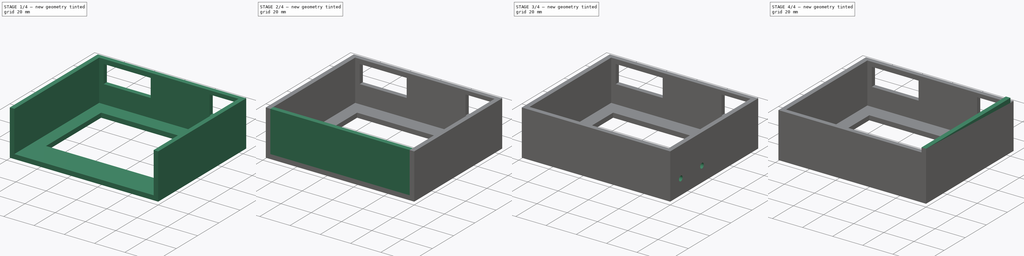
[diagram: build sequence overview — one tinted view per stage of 4, left to right]
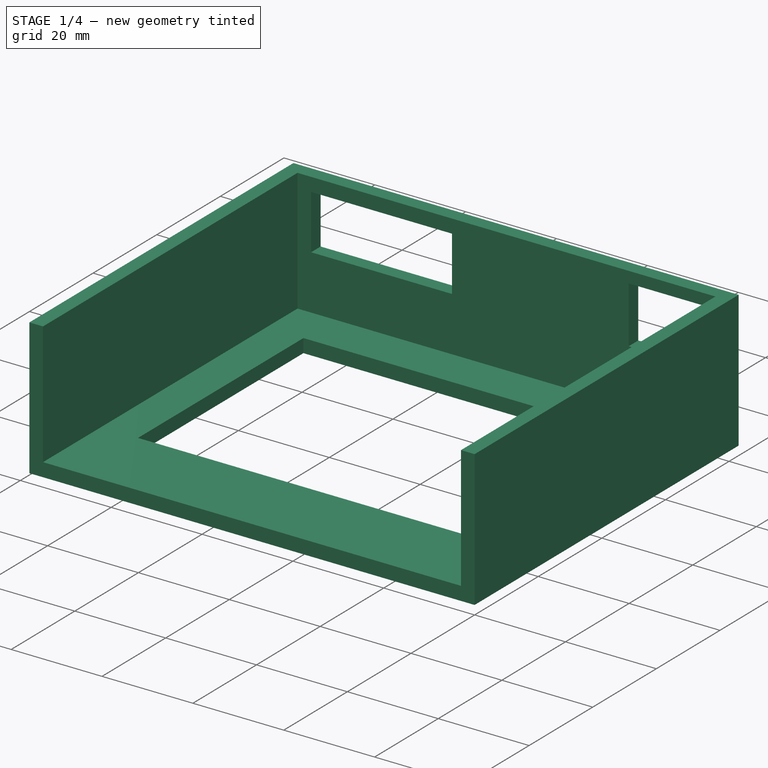
[diagram: stage 1 of 4 — iso view after this stage's code; geometry added in this stage tinted green]
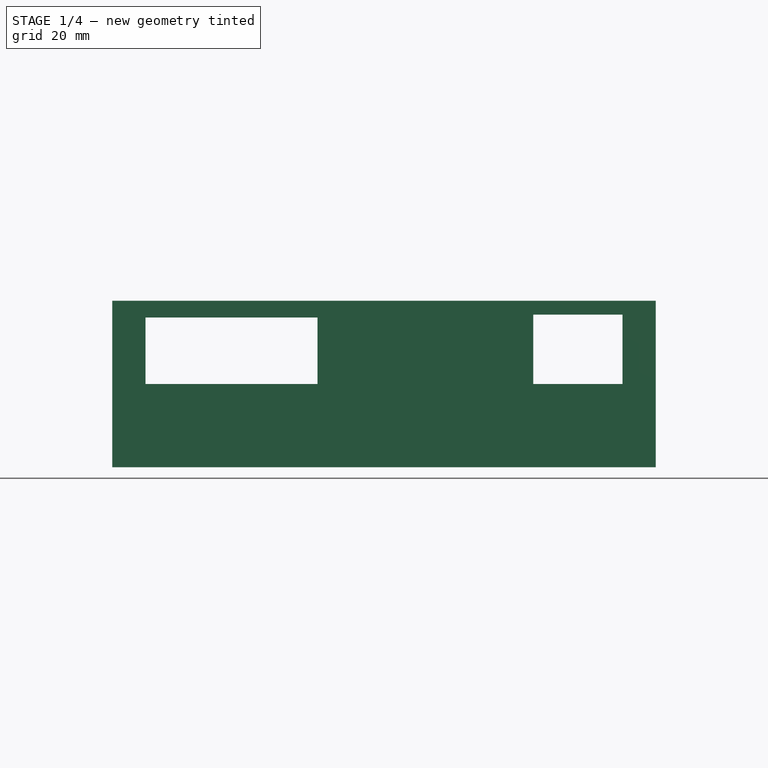
[diagram: stage 1 of 4 — front view after this stage's code; geometry added in this stage tinted green]
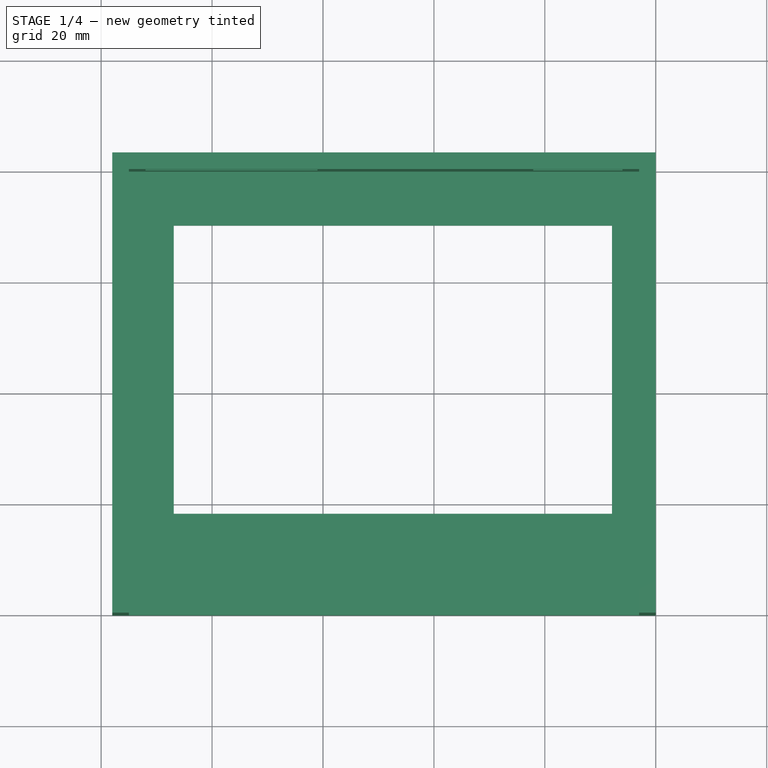
[diagram: stage 1 of 4 — top view after this stage's code; geometry added in this stage tinted green]
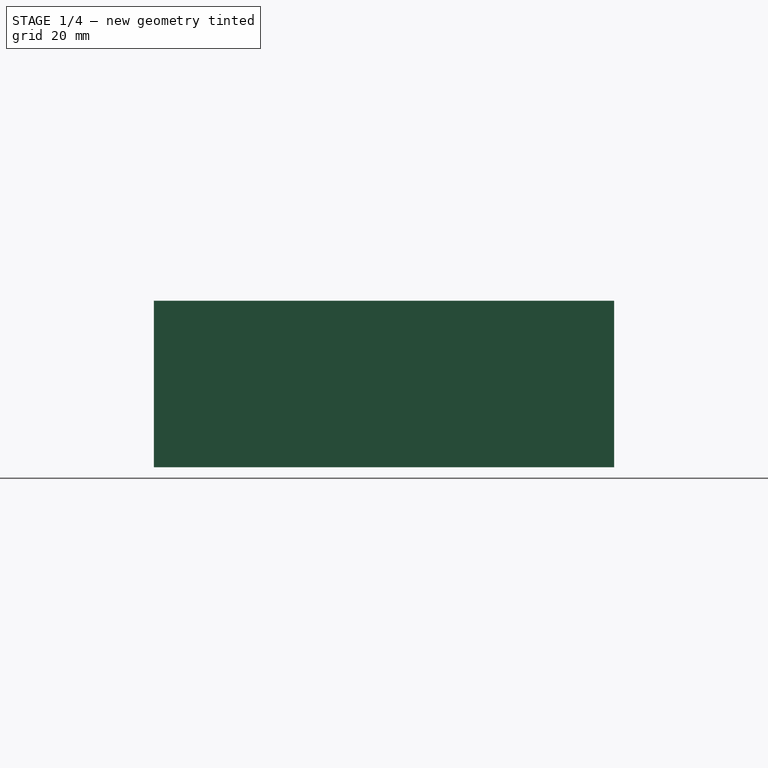
[diagram: stage 1 of 4 — right view after this stage's code; geometry added in this stage tinted green]
FCSTD DOCUMENT  (FreeCAD 0.14R2935 (Git))
Label: carcas_2
License: CC-BY 3.0
LicenseURL: http://creativecommons.org/licenses/by/3.0/
objects: Sketcher::SketchObject×10, PartDesign::Pad×8, Part::Feature×2, PartDesign::Chamfer×2, PartDesign::Pocket×2
note: 34 computed .brp shape members not serialized (recipe doc carries the construction recipe); baked Part::Feature solids carry a one-line shape summary decoded from their .brp

FEATURE [Sketcher::SketchObject] Sketch
  sketch-geometry (8):
    g0: LineSegment StartX=-95 StartY=80 StartZ=0 EndX=0 EndY=80 EndZ=0
    g1: LineSegment StartX=0 StartY=80 StartZ=0 EndX=0 EndY=0 EndZ=0
    g2: LineSegment StartX=0 StartY=0 StartZ=0 EndX=-95 EndY=0 EndZ=0
    g3: LineSegment StartX=-95 StartY=0 StartZ=0 EndX=-95 EndY=80 EndZ=0
    g4: LineSegment StartX=-86.9 StartY=70.3 StartZ=0 EndX=-7.9 EndY=70.3 EndZ=0
    g5: LineSegment StartX=-7.9 StartY=70.3 StartZ=0 EndX=-7.9 EndY=18.3 EndZ=0
    g6: LineSegment StartX=-7.9 StartY=18.3 StartZ=0 EndX=-86.9 EndY=18.3 EndZ=0
    g7: LineSegment StartX=-86.9 StartY=18.3 StartZ=0 EndX=-86.9 EndY=70.3 EndZ=0
  constraints (23):
    c: Coincident(g0,g1)
    c: Coincident(g1,g2)
    c: Coincident(g2,g3)
    c: Coincident(g3,g0)
    c: Horizontal(g0)
    c: Horizontal(g2)
    c: Vertical(g1)
    c: Vertical(g3)
    c: DistanceX(g2) = -95
    c: DistanceY(g3) = 80
    c: Coincident(g4,g5)
    c: Coincident(g5,g6)
    c: Coincident(g6,g7)
    c: Coincident(g7,g4)
    c: Horizontal(g4)
    c: Horizontal(g6)
    c: Vertical(g5)
    c: Vertical(g7)
    c: DistanceX(g6) = -79
    c: DistanceY(g5) = -52
    c: Distance(g4,g0) = 9.7
    c: Distance(g6,g3) = 8.1
    c: Coincident(g1,g-1)
FEATURE [PartDesign::Pad] Pad
  Length = 3
  Length2 = 100
  Sketch = -> Sketch
  Type = 0
FEATURE [Sketcher::SketchObject] Sketch001
  ExternalGeometry = -> [Pad]
  Placement = pos=(0,0,0) rot=(0.57735,0.57735,0.57735;2.0944rad)
  Support = -> Pad [Face2]
  sketch-geometry (4):
    g0: LineSegment StartX=0 StartY=30 StartZ=0 EndX=80 EndY=30 EndZ=0
    g1: LineSegment StartX=80 StartY=30 StartZ=0 EndX=80 EndY=3 EndZ=0
    g2: LineSegment StartX=80 StartY=3 StartZ=0 EndX=0 EndY=3 EndZ=0
    g3: LineSegment StartX=0 StartY=3 StartZ=0 EndX=0 EndY=30 EndZ=0
  constraints (11):
    c: Coincident(g0,g1)
    c: Coincident(g1,g2)
    c: Coincident(g2,g3)
    c: Coincident(g3,g0)
    c: Horizontal(g0)
    c: Horizontal(g2)
    c: Vertical(g1)
    c: Vertical(g3)
    c: Coincident(g2,g-3)
    c: Coincident(g1,g-3)
    c: DistanceY(g1) = -27
FEATURE [PartDesign::Pad] Pad001
  Length = 3
  Length2 = 100
  Reversed = true
  Sketch = -> Sketch001
  Type = 0
FEATURE [Part::Feature] Pad005
  shape: bbox 98 x 80 x 30 mm, 14 faces (baked)
FEATURE [Sketcher::SketchObject] Sketch004
  ExternalGeometry = -> [Pad001,Pad003]
  Placement = pos=(0,80,0) rot=(0,0.707107,0.707107;3.14159rad)
  Support = -> Pad005 [Face12]
  sketch-geometry (12):
    g0: LineSegment StartX=6 StartY=27.5 StartZ=0 EndX=22.1 EndY=27.5 EndZ=0
    g1: LineSegment StartX=22.1 StartY=27.5 StartZ=0 EndX=22.1 EndY=15 EndZ=0
    g2: LineSegment StartX=22.1 StartY=15 StartZ=0 EndX=6 EndY=15 EndZ=0
    g3: LineSegment StartX=6 StartY=15 StartZ=0 EndX=6 EndY=27.5 EndZ=0
    g4: LineSegment StartX=61 StartY=27 StartZ=0 EndX=92 EndY=27 EndZ=0
    g5: LineSegment StartX=92 StartY=27 StartZ=0 EndX=92 EndY=15 EndZ=0
    g6: LineSegment StartX=92 StartY=15 StartZ=0 EndX=61 EndY=15 EndZ=0
    g7: LineSegment StartX=61 StartY=15 StartZ=0 EndX=61 EndY=27 EndZ=0
    g8: LineSegment StartX=0 StartY=30 StartZ=0 EndX=98 EndY=30 EndZ=0
    g9: LineSegment StartX=98 StartY=30 StartZ=0 EndX=98 EndY=0 EndZ=0
    g10: LineSegment StartX=98 StartY=0 StartZ=0 EndX=0 EndY=0 EndZ=0
    g11: LineSegment StartX=0 StartY=0 StartZ=0 EndX=0 EndY=30 EndZ=0
  constraints (35):
    c: Coincident(g0,g1)
    c: Coincident(g1,g2)
    c: Coincident(g2,g3)
    c: Coincident(g3,g0)
    c: Horizontal(g0)
    c: Horizontal(g2)
    c: Vertical(g1)
    c: Vertical(g3)
    c: DistanceY(g1) = -12.5
    c: DistanceX(g2) = -16.1
    c: DistanceX(g-2,g0) = 6
    c: Coincident(g4,g5)
    c: Coincident(g5,g6)
    c: Coincident(g6,g7)
    c: Coincident(g7,g4)
    c: Horizontal(g4)
    c: Horizontal(g6)
    c: Vertical(g5)
    c: Vertical(g7)
    c: DistanceX(g6) = -31
    c: DistanceY(g7) = 12
    c: Coincident(g8,g9)
    c: Coincident(g9,g10)
    c: Coincident(g10,g11)
    c: Coincident(g11,g8)
    c: Horizontal(g8)
    c: Horizontal(g10)
    c: Vertical(g9)
    c: Vertical(g11)
    c: Coincident(g10,g-1)
    c: Coincident(g9,g-4)
    c: Coincident(g8,g-4)
    c: Distance(g1,g10) = 15
    c: Distance(g5,g10) = 15
    c: Distance(g4,g-5) = 3
FEATURE [PartDesign::Pad] Pad006
  Length = 3
  Length2 = 100
  Sketch = -> Sketch004
  Type = 0
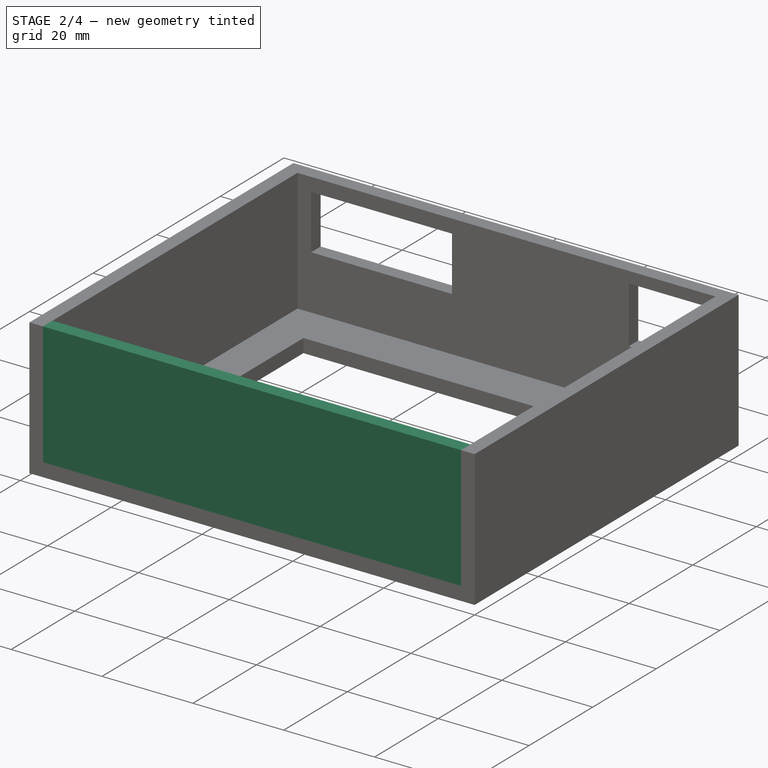
[diagram: stage 2 of 4 — iso view after this stage's code; geometry added in this stage tinted green]
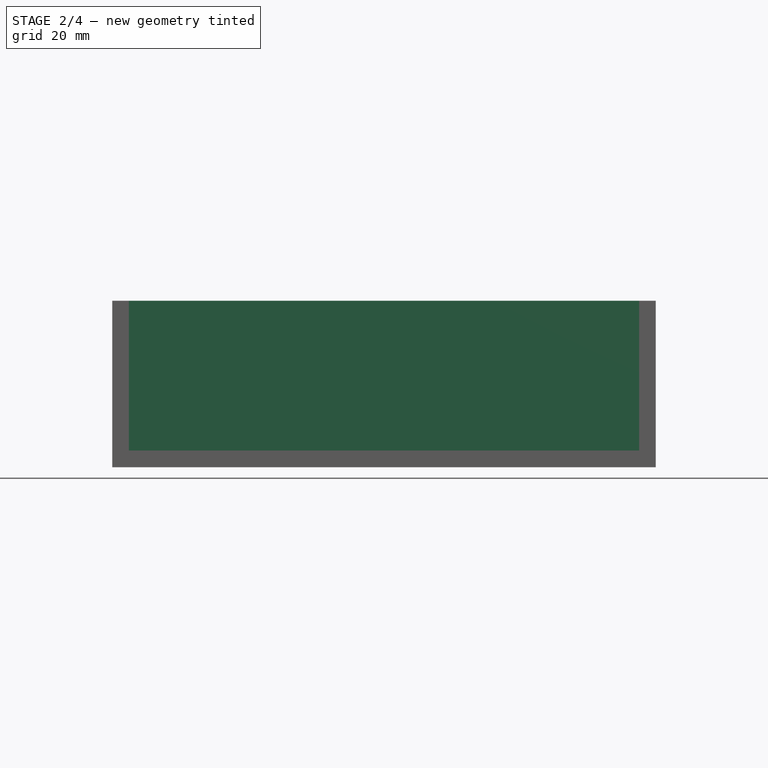
[diagram: stage 2 of 4 — front view after this stage's code; geometry added in this stage tinted green]
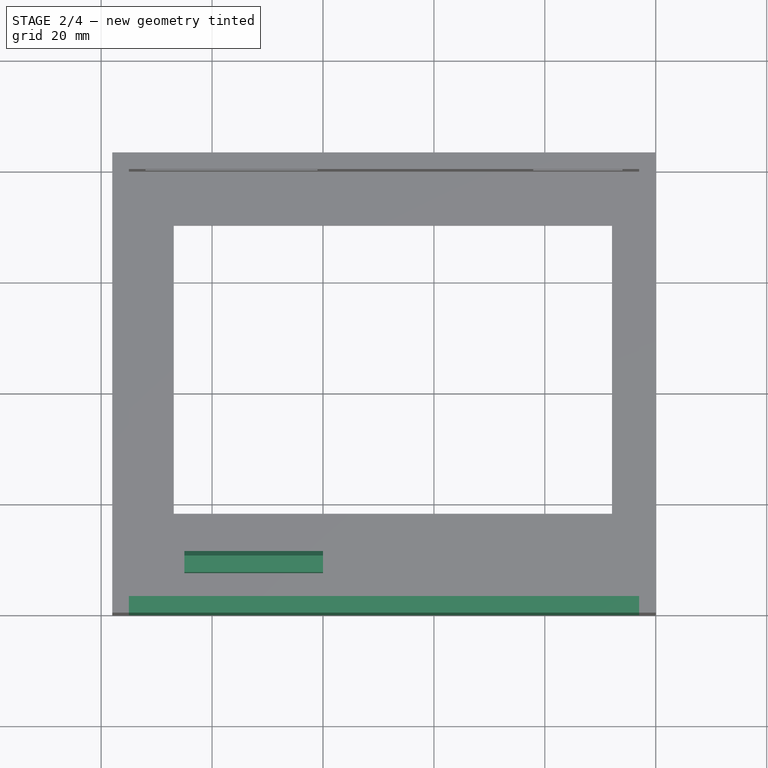
[diagram: stage 2 of 4 — top view after this stage's code; geometry added in this stage tinted green]
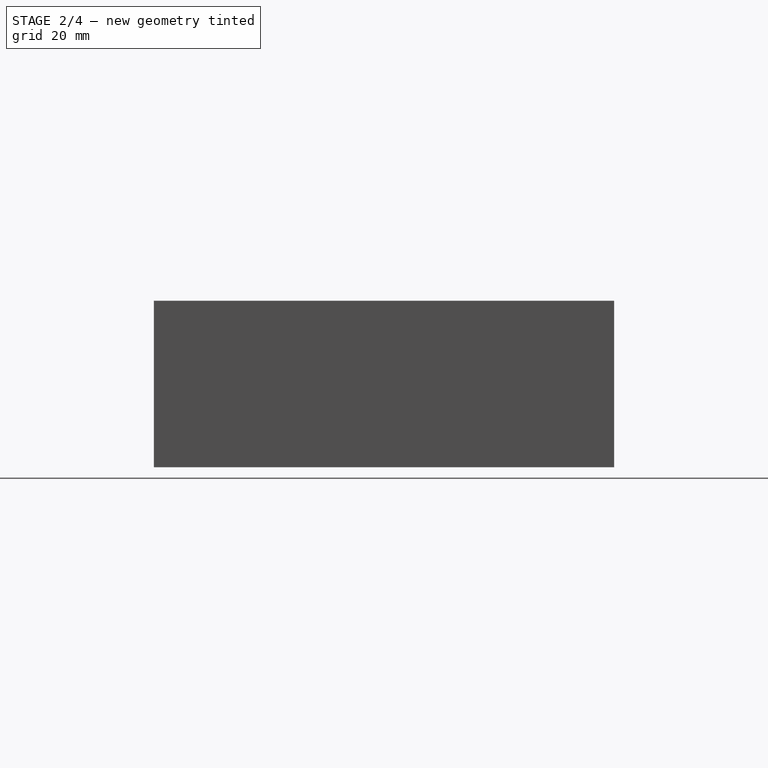
[diagram: stage 2 of 4 — right view after this stage's code; geometry added in this stage tinted green]
FEATURE [Sketcher::SketchObject] Sketch005
  ExternalGeometry = -> [Pad006]
  Placement = pos=(0,0,0) rot=(1,0,0;1.5708rad)
  Support = -> Pad006 [Face1]
  sketch-geometry (4):
    g0: LineSegment StartX=-95 StartY=30 StartZ=0 EndX=-3 EndY=30 EndZ=0
    g1: LineSegment StartX=-3 StartY=30 StartZ=0 EndX=-3 EndY=3 EndZ=0
    g2: LineSegment StartX=-3 StartY=3 StartZ=0 EndX=-95 EndY=3 EndZ=0
    g3: LineSegment StartX=-95 StartY=3 StartZ=0 EndX=-95 EndY=30 EndZ=0
  constraints (11):
    c: Coincident(g0,g1)
    c: Coincident(g1,g2)
    c: Coincident(g2,g3)
    c: Coincident(g3,g0)
    c: Horizontal(g0)
    c: Horizontal(g2)
    c: Vertical(g1)
    c: Vertical(g3)
    c: Coincident(g0,g-4)
    c: Coincident(g0,g-3)
    c: Coincident(g2,g-3)
FEATURE [PartDesign::Pad] Pad007
  Length = 3
  Length2 = 100
  Reversed = true
  Sketch = -> Sketch005
  Type = 0
FEATURE [Sketcher::SketchObject] Sketch006
  ExternalGeometry = -> [Pad007]
  Placement = pos=(0,0,3) rot=(0,0,1;0rad)
  Support = -> Pad007 [Face21]
  sketch-geometry (4):
    g0: LineSegment StartX=-85 StartY=10.6 StartZ=0 EndX=-60 EndY=10.6 EndZ=0
    g1: LineSegment StartX=-60 StartY=10.6 StartZ=0 EndX=-60 EndY=7.6 EndZ=0
    g2: LineSegment StartX=-60 StartY=7.6 StartZ=0 EndX=-85 EndY=7.6 EndZ=0
    g3: LineSegment StartX=-85 StartY=7.6 StartZ=0 EndX=-85 EndY=10.6 EndZ=0
  constraints (12):
    c: Coincident(g0,g1)
    c: Coincident(g1,g2)
    c: Coincident(g2,g3)
    c: Coincident(g3,g0)
    c: Horizontal(g0)
    c: Horizontal(g2)
    c: Vertical(g1)
    c: Vertical(g3)
    c: DistanceX(g0) = 25
    c: DistanceY(g1) = -3
    c: Distance(g1,g-3) = 4.6
    c: Distance(g2,g-4) = 10
FEATURE [PartDesign::Pad] Pad008
  Length = 10
  Length2 = 100
  Sketch = -> Sketch006
  Type = 0
FEATURE [PartDesign::Chamfer] Chamfer
  Base = -> Pad008 [Edge71]
  Size = 1
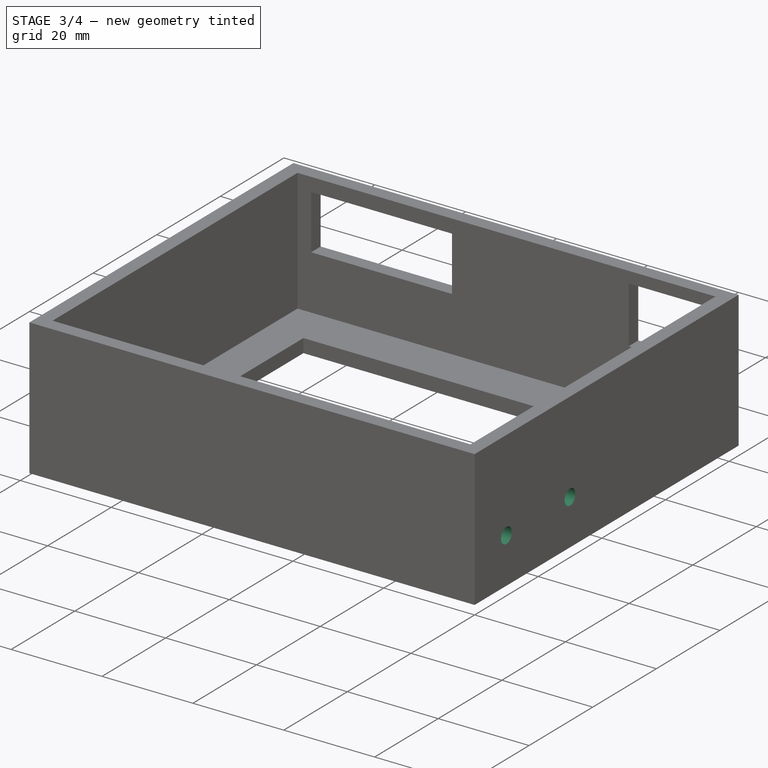
[diagram: stage 3 of 4 — iso view after this stage's code; geometry added in this stage tinted green]
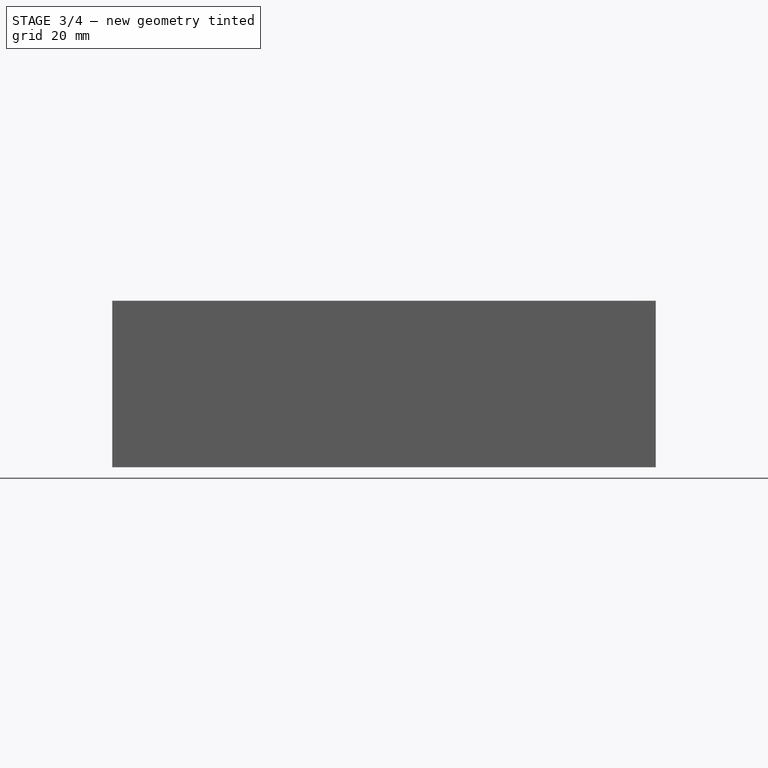
[diagram: stage 3 of 4 — front view after this stage's code; geometry added in this stage tinted green]
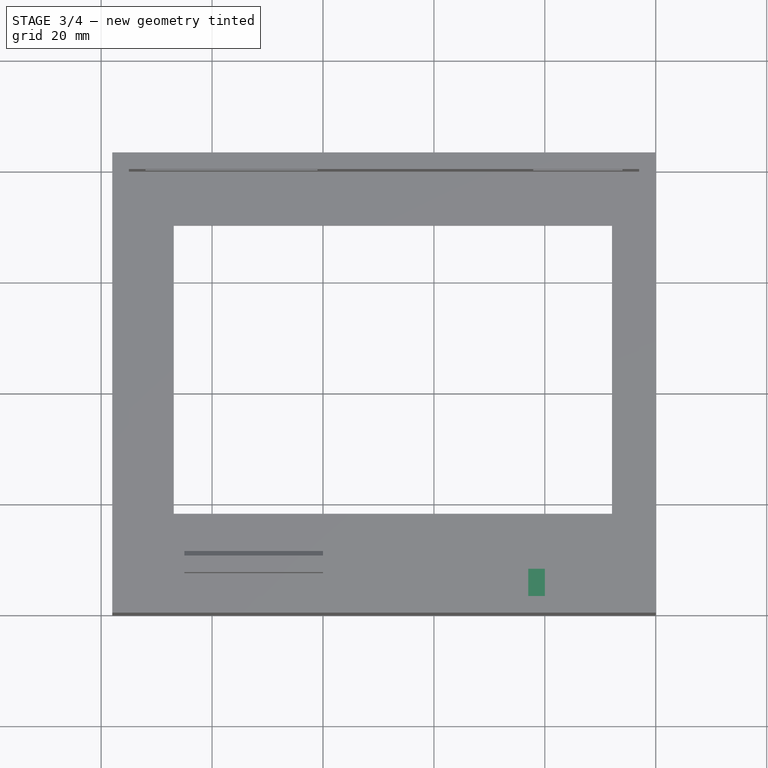
[diagram: stage 3 of 4 — top view after this stage's code; geometry added in this stage tinted green]
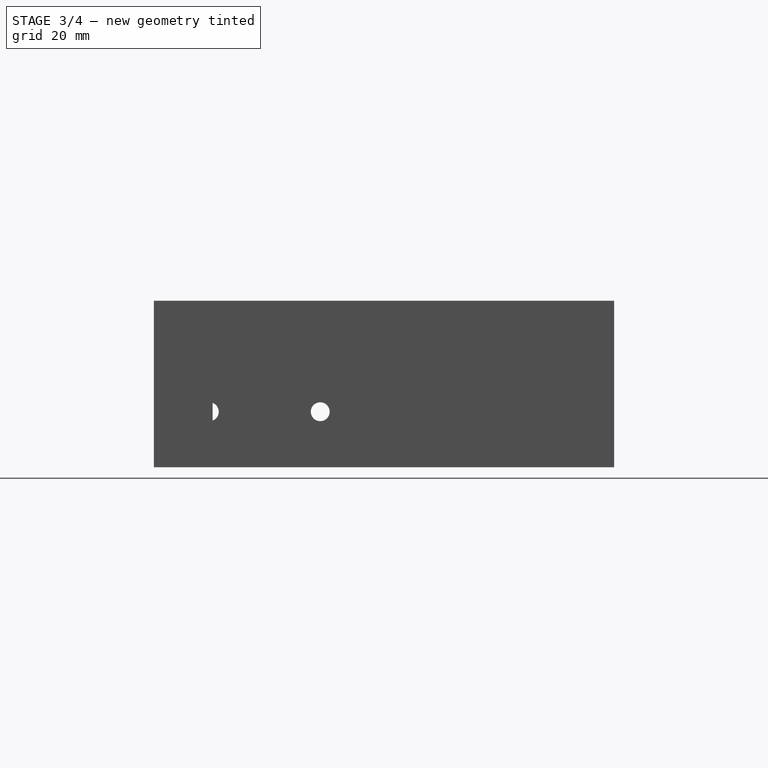
[diagram: stage 3 of 4 — right view after this stage's code; geometry added in this stage tinted green]
FEATURE [Sketcher::SketchObject] Sketch007
  ExternalGeometry = -> [Chamfer]
  Placement = pos=(0,0,0) rot=(0.57735,0.57735,0.57735;2.0944rad)
  Support = -> Chamfer [Face34]
  sketch-geometry (2):
    g0: Circle CenterX=30 CenterY=10 CenterZ=0 NormalX=0 NormalY=0 NormalZ=1 Radius=1.7
    g1: Circle CenterX=10 CenterY=10 CenterZ=0 NormalX=0 NormalY=0 NormalZ=1 Radius=1.7
  constraints (6):
    c: Radius(g0) = 1.7
    c: Equal(g0,g1)
    c: Distance(g1,g-4) = 70
    c: Distance(g1,g-3) = 20
    c: Distance(g0,g-3) = 20
    c: Distance(g1,g0) = 20
FEATURE [PartDesign::Pocket] Pocket
  Length = 5
  Sketch = -> Sketch007
  Type = 0
FEATURE [Sketcher::SketchObject] Sketch008
  ExternalGeometry = -> [Chamfer]
  Placement = pos=(-98,0,0) rot=(0.57735,-0.57735,-0.57735;2.0944rad)
  Support = -> Pocket [Face34]
  sketch-geometry (2):
    g0: Circle CenterX=-10 CenterY=10 CenterZ=0 NormalX=0 NormalY=0 NormalZ=1 Radius=1.7
    g1: Circle CenterX=-30 CenterY=10 CenterZ=0 NormalX=0 NormalY=0 NormalZ=1 Radius=1.7
  constraints (6):
    c: Radius(g0) = 1.7
    c: Equal(g0,g1)
    c: Distance(g1,g-4) = 50
    c: Distance(g1,g-3) = 20
    c: Distance(g0,g-3) = 20
    c: Distance(g1,g0) = 20
FEATURE [PartDesign::Pocket] Pocket001
  Length = 5
  Sketch = -> Sketch008
  Type = 0
FEATURE [Sketcher::SketchObject] Sketch009
  ExternalGeometry = -> [Pocket001]
  Placement = pos=(0,3,0) rot=(0,0.707107,0.707107;3.14159rad)
  Support = -> Pocket001 [Face9]
  sketch-geometry (4):
    g0: LineSegment StartX=20 StartY=25 StartZ=0 EndX=23 EndY=25 EndZ=0
    g1: LineSegment StartX=23 StartY=25 StartZ=0 EndX=23 EndY=15 EndZ=0
    g2: LineSegment StartX=23 StartY=15 StartZ=0 EndX=20 EndY=15 EndZ=0
    g3: LineSegment StartX=20 StartY=15 StartZ=0 EndX=20 EndY=25 EndZ=0
  constraints (12):
    c: Coincident(g0,g1)
    c: Coincident(g1,g2)
    c: Coincident(g2,g3)
    c: Coincident(g3,g0)
    c: Horizontal(g0)
    c: Horizontal(g2)
    c: Vertical(g1)
    c: Vertical(g3)
    c: Distance(g0,g-4) = 17
    c: DistanceX(g2) = -3
    c: DistanceY(g1) = -10
    c: Distance(g0,g-3) = 5
FEATURE [PartDesign::Pad] Pad009
  Length = 5
  Length2 = 100
  Sketch = -> Sketch009
  Type = 0
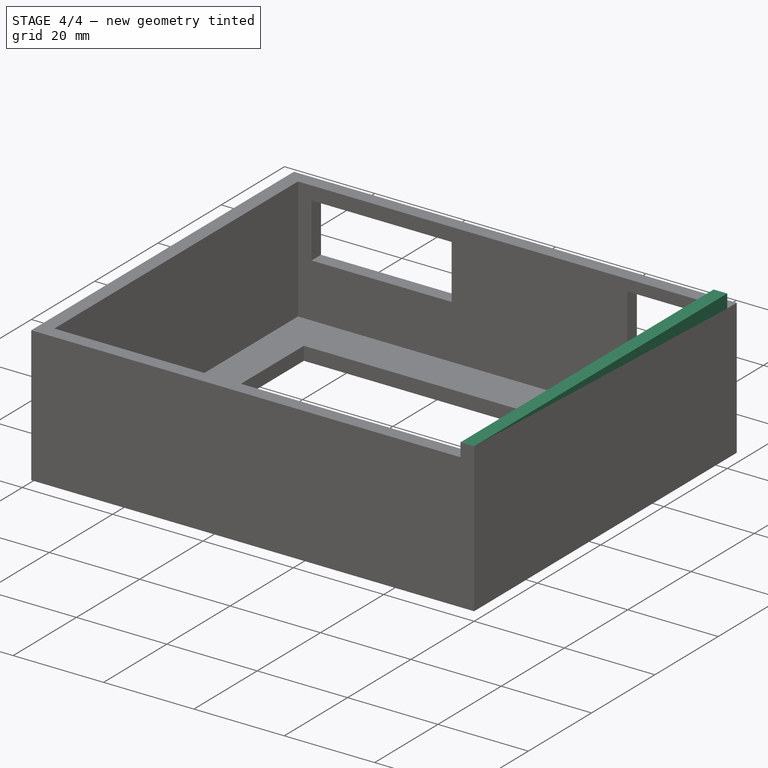
[diagram: stage 4 of 4 — iso view after this stage's code; geometry added in this stage tinted green]
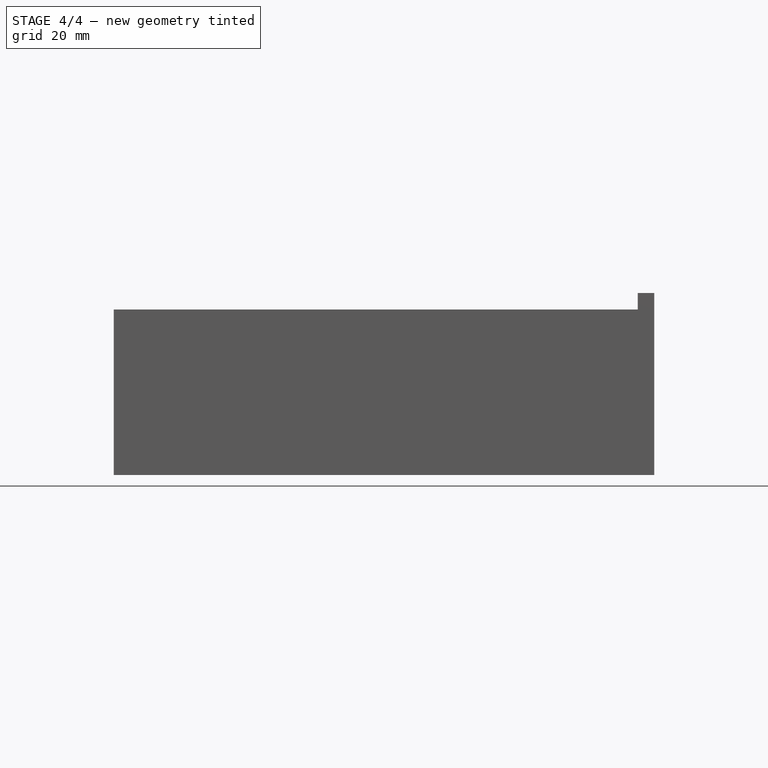
[diagram: stage 4 of 4 — front view after this stage's code; geometry added in this stage tinted green]
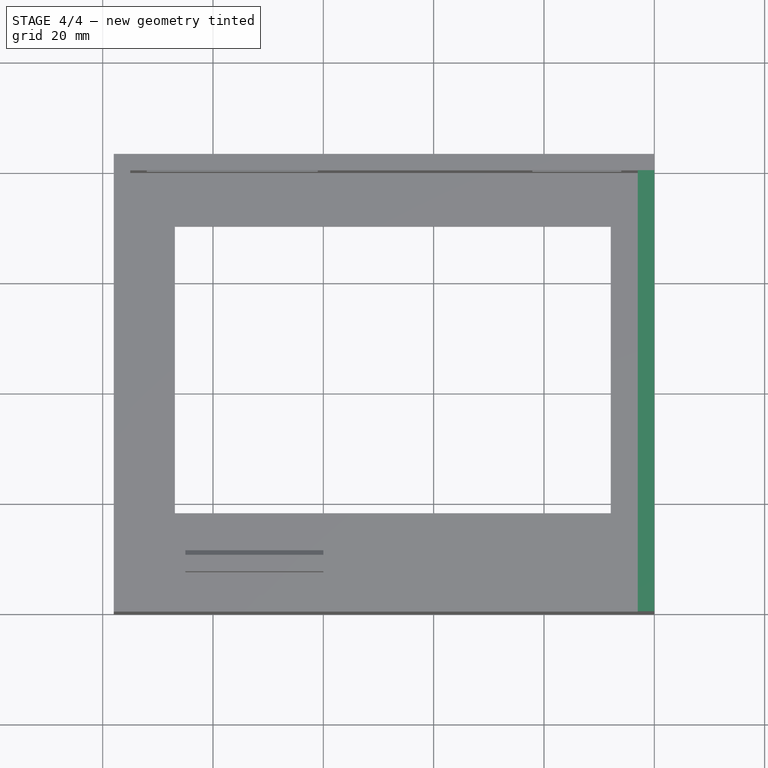
[diagram: stage 4 of 4 — top view after this stage's code; geometry added in this stage tinted green]
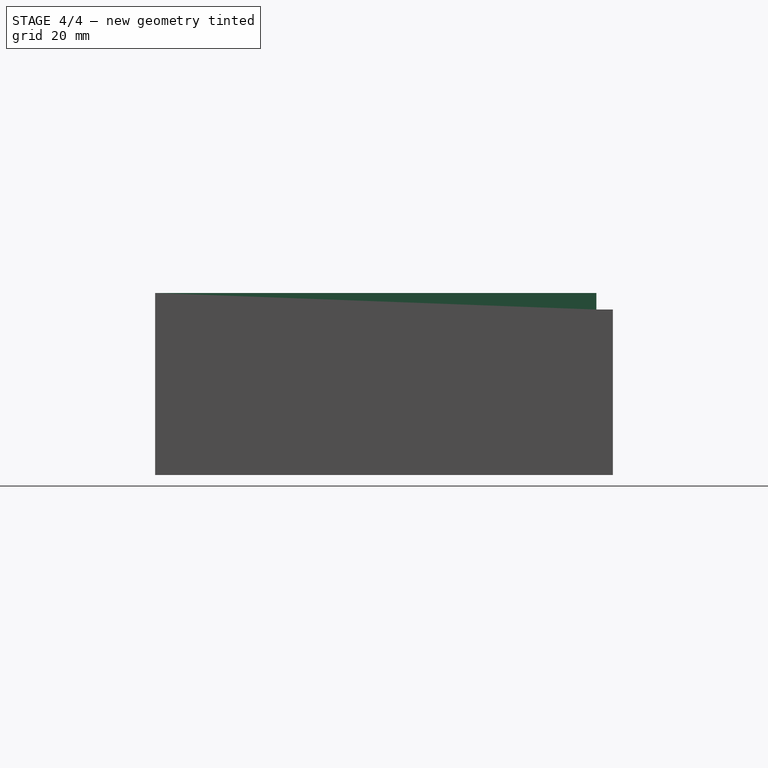
[diagram: stage 4 of 4 — right view after this stage's code; geometry added in this stage tinted green]
FEATURE [Sketcher::SketchObject] Sketch002
  ExternalGeometry = -> [Pad001]
  Placement = pos=(-95,0,0) rot=(0.57735,-0.57735,-0.57735;2.0944rad)
  Support = -> Pad001 [Face1]
  sketch-geometry (4):
    g0: LineSegment StartX=-80 StartY=30 StartZ=0 EndX=0 EndY=30 EndZ=0
    g1: LineSegment StartX=0 StartY=30 StartZ=0 EndX=0 EndY=0 EndZ=0
    g2: LineSegment StartX=0 StartY=0 StartZ=0 EndX=-80 EndY=0 EndZ=0
    g3: LineSegment StartX=-80 StartY=0 StartZ=0 EndX=-80 EndY=30 EndZ=0
  constraints (11):
    c: Coincident(g0,g1)
    c: Coincident(g1,g2)
    c: Coincident(g2,g3)
    c: Coincident(g3,g0)
    c: Horizontal(g0)
    c: Horizontal(g2)
    c: Vertical(g1)
    c: Vertical(g3)
    c: Coincident(g1,g-1)
    c: PointOnObject(g-3,g3)
    c: DistanceY(g1) = -30
FEATURE [PartDesign::Pad] Pad002
  Length = 3
  Length2 = 100
  Sketch = -> Sketch002
  Type = 0
FEATURE [Part::Feature] Pad003
  shape: bbox 98 x 80 x 33 mm, 14 faces (baked)
FEATURE [Sketcher::SketchObject] Sketch003
  ExternalGeometry = -> [Pad001,Pad003]
  Placement = pos=(0,80,0) rot=(0,0.707107,0.707107;3.14159rad)
  Support = -> Pad003 [Face12]
  sketch-geometry (12):
    g0: LineSegment StartX=6 StartY=27.5 StartZ=0 EndX=22.1 EndY=27.5 EndZ=0
    g1: LineSegment StartX=22.1 StartY=27.5 StartZ=0 EndX=22.1 EndY=15 EndZ=0
    g2: LineSegment StartX=22.1 StartY=15 StartZ=0 EndX=6 EndY=15 EndZ=0
    g3: LineSegment StartX=6 StartY=15 StartZ=0 EndX=6 EndY=27.5 EndZ=0
    g4: LineSegment StartX=61 StartY=27 StartZ=0 EndX=92 EndY=27 EndZ=0
    g5: LineSegment StartX=92 StartY=27 StartZ=0 EndX=92 EndY=15 EndZ=0
    g6: LineSegment StartX=92 StartY=15 StartZ=0 EndX=61 EndY=15 EndZ=0
    g7: LineSegment StartX=61 StartY=15 StartZ=0 EndX=61 EndY=27 EndZ=0
    g8: LineSegment StartX=0 StartY=30 StartZ=0 EndX=98 EndY=30 EndZ=0
    g9: LineSegment StartX=98 StartY=30 StartZ=0 EndX=98 EndY=0 EndZ=0
    g10: LineSegment StartX=98 StartY=0 StartZ=0 EndX=0 EndY=0 EndZ=0
    g11: LineSegment StartX=0 StartY=0 StartZ=0 EndX=0 EndY=30 EndZ=0
  constraints (35):
    c: Coincident(g0,g1)
    c: Coincident(g1,g2)
    c: Coincident(g2,g3)
    c: Coincident(g3,g0)
    c: Horizontal(g0)
    c: Horizontal(g2)
    c: Vertical(g1)
    c: Vertical(g3)
    c: DistanceY(g1) = -12.5
    c: DistanceX(g2) = -16.1
    c: DistanceX(g-2,g0) = 6
    c: Coincident(g4,g5)
    c: Coincident(g5,g6)
    c: Coincident(g6,g7)
    c: Coincident(g7,g4)
    c: Horizontal(g4)
    c: Horizontal(g6)
    c: Vertical(g5)
    c: Vertical(g7)
    c: DistanceX(g6) = -31
    c: DistanceY(g7) = 12
    c: Coincident(g8,g9)
    c: Coincident(g9,g10)
    c: Coincident(g10,g11)
    c: Coincident(g11,g8)
    c: Horizontal(g8)
    c: Horizontal(g10)
    c: Vertical(g9)
    c: Vertical(g11)
    c: Coincident(g10,g-1)
    c: Coincident(g9,g-4)
    c: Coincident(g8,g-4)
    c: Distance(g1,g10) = 15
    c: Distance(g5,g10) = 15
    c: Distance(g4,g-5) = 3
FEATURE [PartDesign::Pad] Pad004
  Length = 3
  Length2 = 100
  Sketch = -> Sketch003
  Type = 0
FEATURE [PartDesign::Chamfer] Chamfer001
  Base = -> Pad009 [Edge46]
  Size = 2
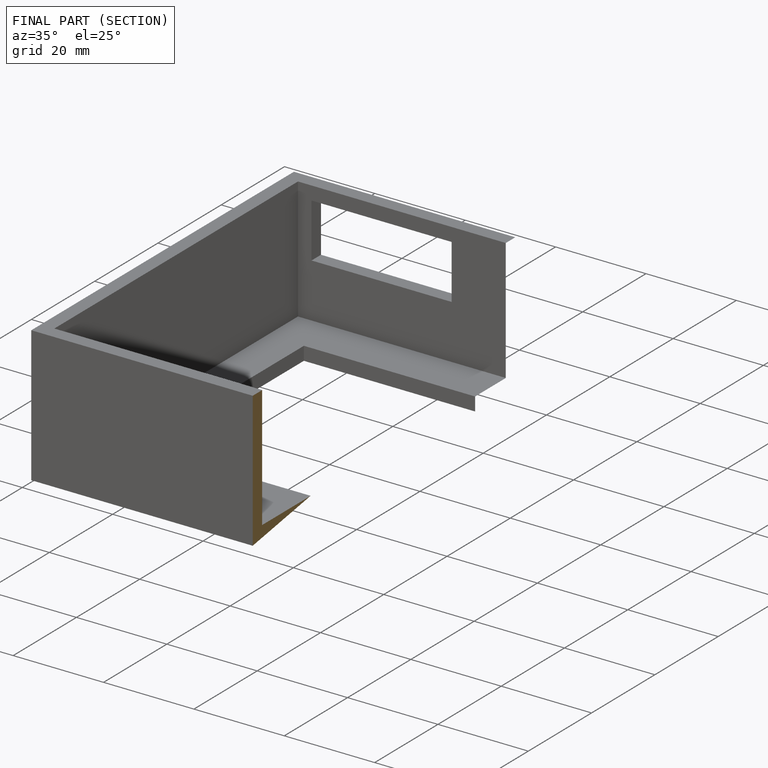
[diagram: finished part — half-section view (interior)]
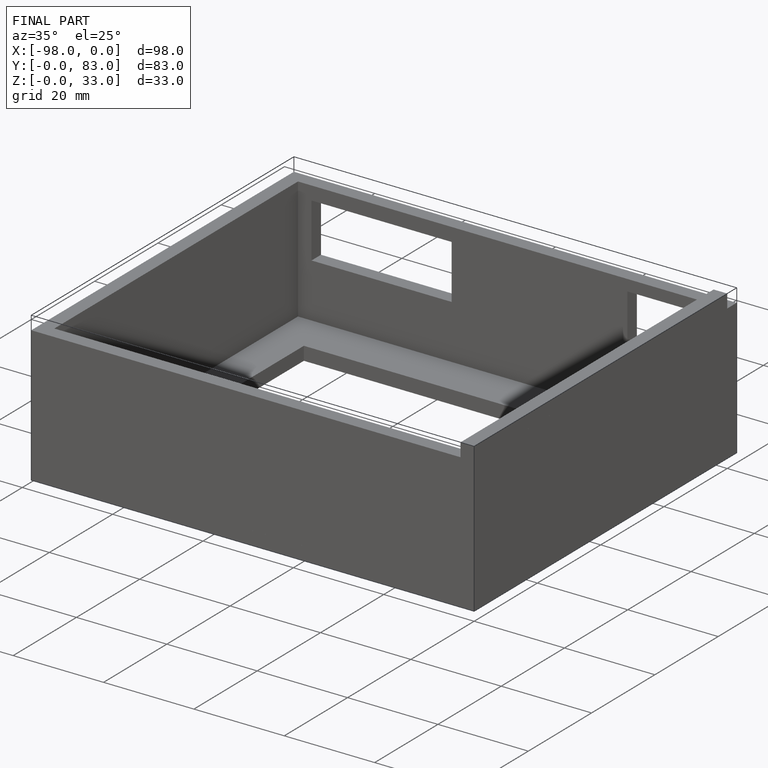
[diagram: finished part — iso view with bounding-box wireframe]
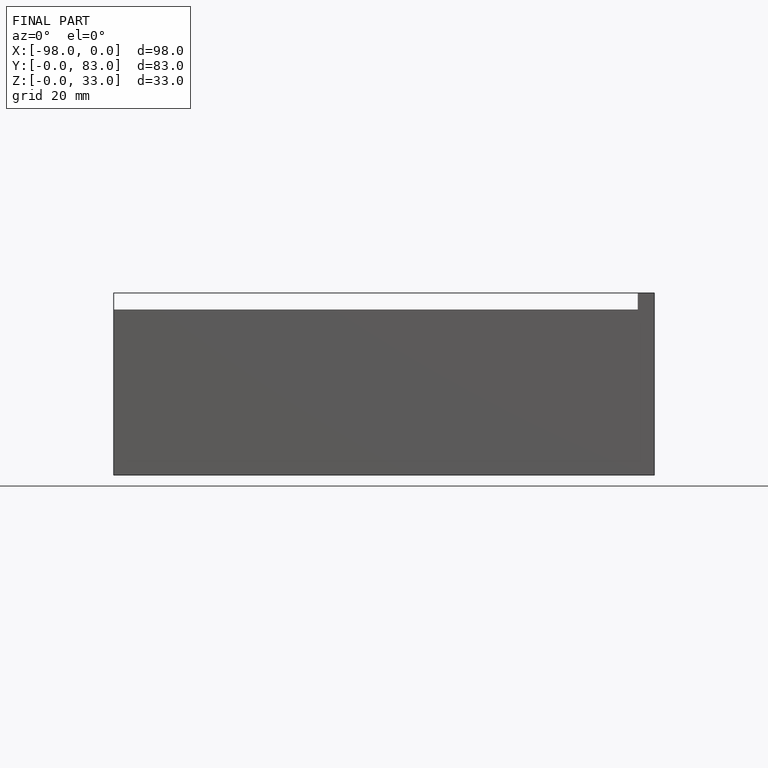
[diagram: finished part — front view with bounding-box wireframe]
